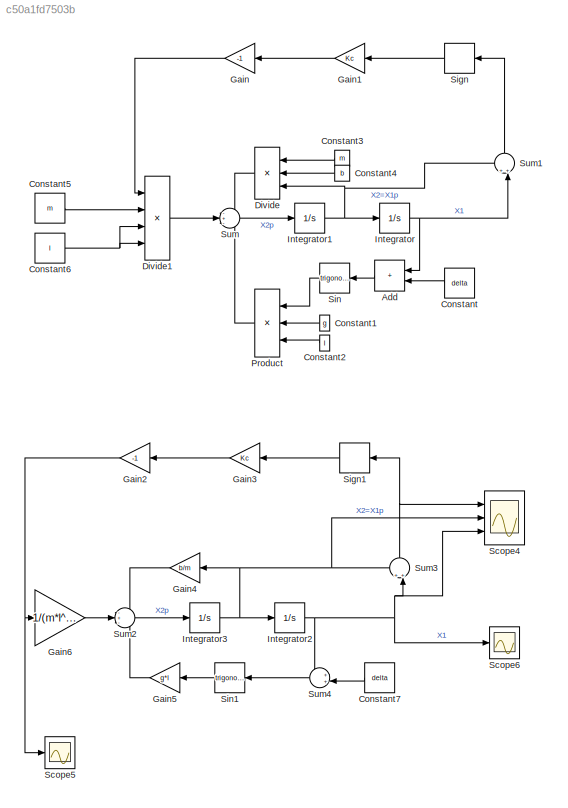
MODEL slx_c50a1fd7503b
KIND model
CONFIG AbsTol = auto
CONFIG EnableMultiTasking = off
CONFIG FixedStep = auto
CONFIG MaxStep = auto
CONFIG MinStep = auto
CONFIG RelTol = 1e-3
CONFIG SampleTimeConstraint = Unconstrained
CONFIG SolverName = VariableStepAuto
CONFIG StartTime = 0.0
CONFIG StopTime = 10.0
BLOCK [Sum] Add
  IconShape = rectangular
  NameLocation = top
  Ports = [2, 1]
BLOCK [Constant] Constant
  NameLocation = top
  Value = delta
BLOCK [Constant] Constant1
  NameLocation = top
  Value = g
BLOCK [Constant] Constant2
  NameLocation = top
  Value = l
BLOCK [Constant] Constant3
  NameLocation = top
  Value = m
BLOCK [Constant] Constant4
  NameLocation = top
  Value = b
BLOCK [Constant] Constant5
  Value = m
BLOCK [Constant] Constant6
  Value = l
BLOCK [Constant] Constant7
  NameLocation = top
  Value = delta
BLOCK [Product] Divide
  Inputs = /**
  NameLocation = top
  Ports = [3, 1]
BLOCK [Product] Divide1
  Inputs = *///
  Ports = [4, 1]
BLOCK [Gain] Gain
  Gain = -1
  NameLocation = top
BLOCK [Gain] Gain1
  Gain = Kc
  NameLocation = top
BLOCK [Gain] Gain2
  Gain = -1
  NameLocation = top
BLOCK [Gain] Gain3
  Gain = Kc
  NameLocation = top
BLOCK [Gain] Gain4
  Gain = b/m
  NameLocation = top
BLOCK [Gain] Gain5
  Gain = g*l
  NameLocation = top
BLOCK [Gain] Gain6
  Gain = 1/(m*l^2)
BLOCK [Integrator] Integrator
  Ports = [1, 1]
BLOCK [Integrator] Integrator1
  Ports = [1, 1]
BLOCK [Integrator] Integrator2
  Ports = [1, 1]
BLOCK [Integrator] Integrator3
  Ports = [1, 1]
BLOCK [Product] Product
  Inputs = 3
  NameLocation = top
  Ports = [3, 1]
BLOCK [Scope] Scope4
  Floating = off
  NumInputPorts = 3
  Ports = [3]
  ScopeSpecificationString = Simulink.scopes.TimeScopeBlockCfg('CurrentConfiguration', extmgr.ConfigurationSet(extmgr.Configuration('Core','General UI',true),extmgr.Configuration('Core','Source UI',true),extmgr.Configuration('Sources','WiredSimulink',true,'DataLoggingVariableName','ScopeData5'),extmgr.Configuration('Visuals','Time Domain',true),extmgr.Configuration('Tools','Plot Navigation',true),extmgr.Configuration('Tools',...<+40ch>
BLOCK [Scope] Scope5
  Floating = off
  NumInputPorts = 1
  Ports = [1]
  ScopeSpecificationString = Simulink.scopes.TimeScopeBlockCfg('CurrentConfiguration', extmgr.ConfigurationSet(extmgr.Configuration('Core','General UI',true),extmgr.Configuration('Core','Source UI',true),extmgr.Configuration('Sources','WiredSimulink',true,'DataLoggingVariableName','ScopeData6'),extmgr.Configuration('Visuals','Time Domain',true),extmgr.Configuration('Tools','Plot Navigation',true),extmgr.Configuration('Tools',...<+40ch>
BLOCK [Scope] Scope6
  Floating = off
  NumInputPorts = 1
  Ports = [1]
  ScopeSpecificationString = Simulink.scopes.TimeScopeBlockCfg('CurrentConfiguration', extmgr.ConfigurationSet(extmgr.Configuration('Core','General UI',true),extmgr.Configuration('Core','Source UI',true),extmgr.Configuration('Sources','WiredSimulink',true,'DataLoggingVariableName','ScopeData7'),extmgr.Configuration('Visuals','Time Domain',true),extmgr.Configuration('Tools','Plot Navigation',true),extmgr.Configuration('Tools',...<+40ch>
BLOCK [Signum] Sign
  NameLocation = top
  ZeroCross = off
BLOCK [Signum] Sign1
  NameLocation = top
  ZeroCross = off
BLOCK [Trigonometry] Sin
  NameLocation = top
  Ports = [1, 1]
BLOCK [Trigonometry] Sin1
  NameLocation = top
  Ports = [1, 1]
BLOCK [Sum] Sum
  Inputs = -+-
  Ports = [3, 1]
BLOCK [Sum] Sum1
  Inputs = ++|
  NameLocation = right
  Ports = [2, 1]
BLOCK [Sum] Sum2
  Inputs = -+-
  Ports = [3, 1]
BLOCK [Sum] Sum3
  Inputs = ++|
  NameLocation = right
  Ports = [2, 1]
BLOCK [Sum] Sum4
  Inputs = ++|
  NameLocation = top
  Ports = [2, 1]
LINE Add:1 -> Sin:1
LINE Constant1:1 -> Product:2
LINE Constant2:1 -> Product:3
LINE Constant3:1 -> Divide:1
LINE Constant4:1 -> Divide:2
LINE Constant5:1 -> Divide1:2
NET Constant6:1 -> Divide1:3, Divide1:4
LINE Constant7:1 -> Sum4:2
LINE Constant:1 -> Add:2
LINE Divide1:1 -> Sum:2
LINE Divide:1 -> Sum:1
LINE Gain1:1 -> Gain:1
NET Gain2:1 -> Gain6:1, Scope5:1
LINE Gain3:1 -> Gain2:1
LINE Gain4:1 -> Sum2:1
LINE Gain5:1 -> Sum2:3
LINE Gain6:1 -> Sum2:2
LINE Gain:1 -> Divide1:1
NET Integrator1:1 -> Divide:3, Integrator:1, Sum1:1
NET Integrator2:1 -> Scope4:3, Scope6:1, Sum3:2, Sum4:1
NET Integrator3:1 -> Gain4:1, Integrator2:1, Scope4:2, Sum3:1
NET Integrator:1 -> Add:1, Sum1:2
LINE Product:1 -> Sum:3
LINE Sign1:1 -> Gain3:1
LINE Sign:1 -> Gain1:1
LINE Sin1:1 -> Gain5:1
LINE Sin:1 -> Product:1
LINE Sum1:1 -> Sign:1
LINE Sum2:1 -> Integrator3:1
NET Sum3:1 -> Scope4:1, Sign1:1
LINE Sum4:1 -> Sin1:1
LINE Sum:1 -> Integrator1:1
note: NET lines group one-source signal fan-out (src -> all destinations, sorted); 1:1 wires keep LINE
